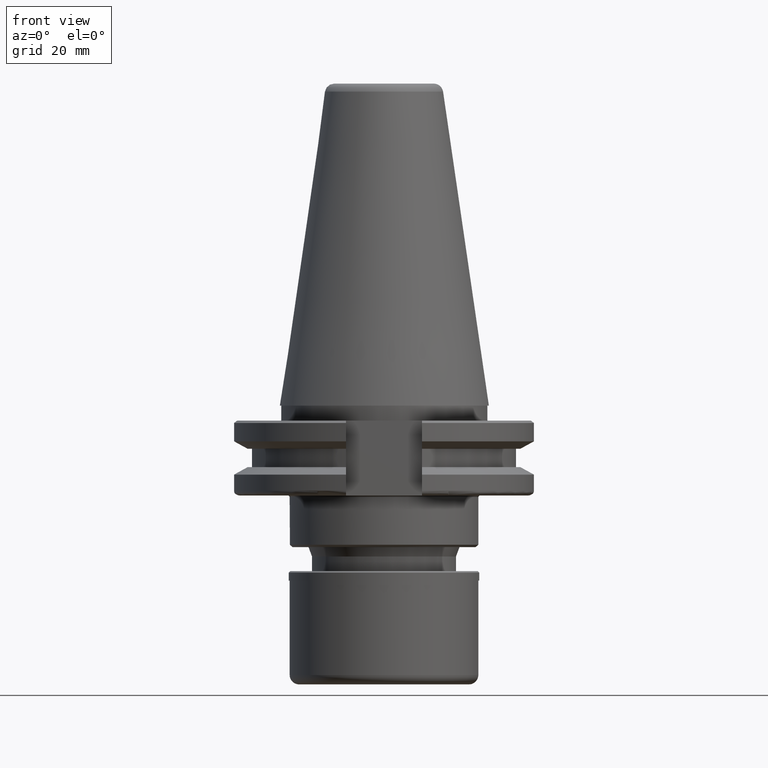
[diagram: clean part render]
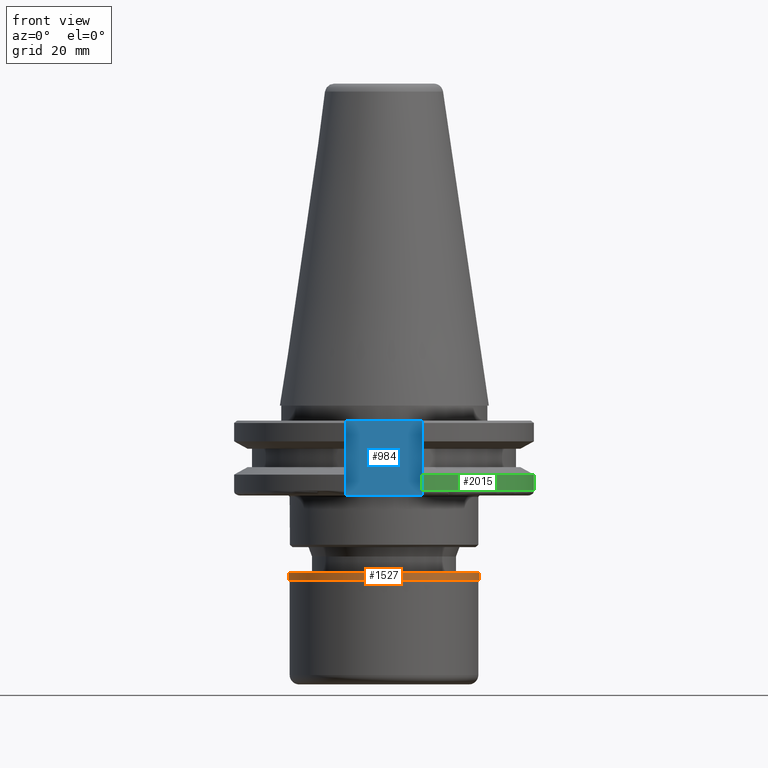
[diagram: same view with three faces highlighted in distinct colors, each labeled with its STEP entity id]
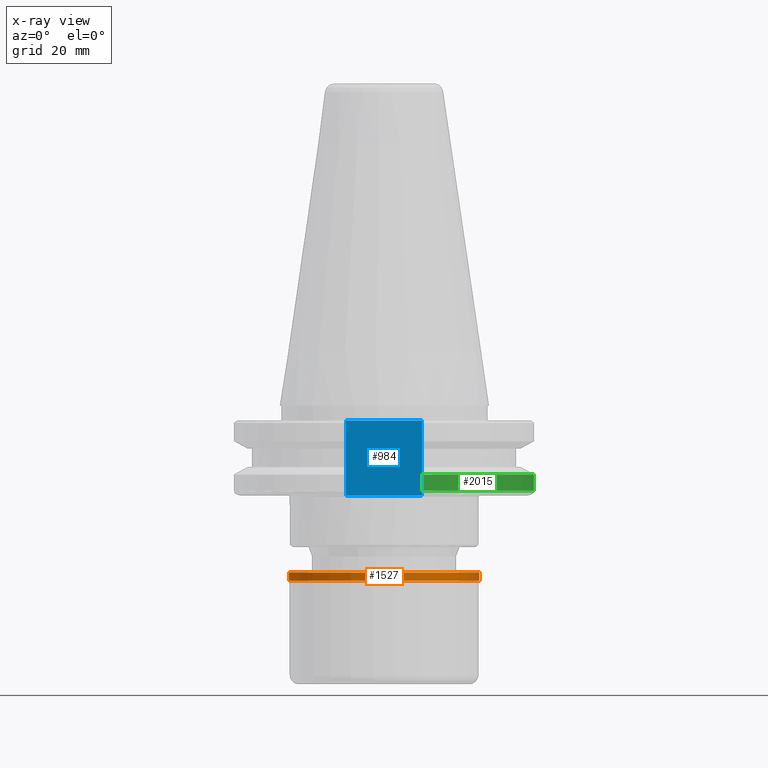
[diagram: x-ray of the same camera — body ghosted, the three highlighted faces saturated]
A machine part, front view with three faces highlighted in distinct colors.
The next image is the same camera in x-ray (body ghosted, the three faces saturated) — at least one of them is partly hidden behind the body in this view.
Their STEP definitions:

[orange] entity #1527 — the highlighted cylindrical surface (bore or boss wall) has radius 20.2 mm, axis along (-0, -0, 1).
#46 = EDGE_CURVE ( 'NONE', #1660, #1660, #1763, .T. ) ;
#247 = CARTESIAN_POINT ( 'NONE',  ( 0.0000000000000000000, 0.0000000000000000000, -37.09999999999999432 ) ) ;
#504 = AXIS2_PLACEMENT_3D ( 'NONE', #664, #1798, #1158 ) ;
#664 = CARTESIAN_POINT ( 'NONE',  ( 0.0000000000000000000, 0.0000000000000000000, -35.40000000000001279 ) ) ;
#673 = CARTESIAN_POINT ( 'NONE',  ( 0.0000000000000000000, 0.0000000000000000000, 69.24999999999997158 ) ) ;
#787 = AXIS2_PLACEMENT_3D ( 'NONE', #247, #1817, #874 ) ;
#834 = DIRECTION ( 'NONE',  ( -0.0000000000000000000, -0.0000000000000000000, 1.000000000000000000 ) ) ;
#868 = CARTESIAN_POINT ( 'NONE',  ( 20.19999999999999574, 0.0000000000000000000, -35.40000000000001279 ) ) ;
#874 = DIRECTION ( 'NONE',  ( 1.000000000000000000, 0.0000000000000000000, 0.0000000000000000000 ) ) ;
#969 = DIRECTION ( 'NONE',  ( 1.000000000000000000, 0.0000000000000000000, 0.0000000000000000000 ) ) ;
#1047 = EDGE_LOOP ( 'NONE', ( #1134 ) ) ;
#1134 = ORIENTED_EDGE ( 'NONE', *, *, #1966, .F. ) ;
#1158 = DIRECTION ( 'NONE',  ( 1.000000000000000000, 0.0000000000000000000, 0.0000000000000000000 ) ) ;
#1197 = ORIENTED_EDGE ( 'NONE', *, *, #46, .T. ) ;
#1220 = AXIS2_PLACEMENT_3D ( 'NONE', #673, #834, #969 ) ;
#1312 = EDGE_LOOP ( 'NONE', ( #1197 ) ) ;
#1327 = CARTESIAN_POINT ( 'NONE',  ( 20.19999999999999574, 0.0000000000000000000, -37.09999999999999432 ) ) ;
#1390 = FACE_OUTER_BOUND ( 'NONE', #1047, .T. ) ;
#1527 = ADVANCED_FACE ( 'NONE', ( #1390, #1635 ), #1941, .T. ) ;
#1635 = FACE_OUTER_BOUND ( 'NONE', #1312, .T. ) ;
#1660 = VERTEX_POINT ( 'NONE', #1327 ) ;
#1704 = CIRCLE ( 'NONE', #504, 20.19999999999999574 ) ;
#1720 = VERTEX_POINT ( 'NONE', #868 ) ;
#1763 = CIRCLE ( 'NONE', #787, 20.19999999999999574 ) ;
#1798 = DIRECTION ( 'NONE',  ( -0.0000000000000000000, -0.0000000000000000000, 1.000000000000000000 ) ) ;
#1817 = DIRECTION ( 'NONE',  ( -0.0000000000000000000, -0.0000000000000000000, 1.000000000000000000 ) ) ;
#1941 = CYLINDRICAL_SURFACE ( 'NONE', #1220, 20.19999999999999574 ) ;
#1966 = EDGE_CURVE ( 'NONE', #1720, #1720, #1704, .T. ) ;

[blue] entity #984 — the highlighted planar face has unit normal (-0, 1, 0).
#25 = EDGE_CURVE ( 'NONE', #193, #796, #1848, .T. ) ;
#61 = DIRECTION ( 'NONE',  ( 1.000000000000000000, 0.0000000000000000000, 0.0000000000000000000 ) ) ;
#193 = VERTEX_POINT ( 'NONE', #799 ) ;
#210 = CARTESIAN_POINT ( 'NONE',  ( -8.050000000000000711, -22.80000000000000071, -46.25028959210869317 ) ) ;
#273 = AXIS2_PLACEMENT_3D ( 'NONE', #1365, #727, #2001 ) ;
#352 = ORIENTED_EDGE ( 'NONE', *, *, #25, .T. ) ;
#357 = CARTESIAN_POINT ( 'NONE',  ( 8.050000000000000711, -22.80000000000000071, -3.180000000000016147 ) ) ;
#365 = EDGE_CURVE ( 'NONE', #895, #796, #446, .T. ) ;
#390 = CARTESIAN_POINT ( 'NONE',  ( -8.050000000000000711, -22.80000000000000071, -19.05000000000001137 ) ) ;
#446 = LINE ( 'NONE', #1888, #1085 ) ;
#482 = VECTOR ( 'NONE', #1951, 1000.000000000000000 ) ;
#535 = CARTESIAN_POINT ( 'NONE',  ( -8.050000000000000711, -22.80000000000000071, -19.05000000000001137 ) ) ;
#567 = VERTEX_POINT ( 'NONE', #390 ) ;
#587 = EDGE_CURVE ( 'NONE', #567, #895, #658, .T. ) ;
#658 = LINE ( 'NONE', #210, #482 ) ;
#727 = DIRECTION ( 'NONE',  ( -0.0000000000000000000, 1.000000000000000000, 0.0000000000000000000 ) ) ;
#796 = VERTEX_POINT ( 'NONE', #357 ) ;
#799 = CARTESIAN_POINT ( 'NONE',  ( 8.050000000000000711, -22.80000000000000071, -19.05000000000001137 ) ) ;
#860 = EDGE_CURVE ( 'NONE', #567, #193, #1918, .T. ) ;
#895 = VERTEX_POINT ( 'NONE', #1785 ) ;
#984 = ADVANCED_FACE ( 'NONE', ( #1199 ), #1219, .F. ) ;
#1062 = VECTOR ( 'NONE', #1947, 1000.000000000000000 ) ;
#1085 = VECTOR ( 'NONE', #2041, 1000.000000000000000 ) ;
#1146 = ORIENTED_EDGE ( 'NONE', *, *, #365, .F. ) ;
#1169 = ORIENTED_EDGE ( 'NONE', *, *, #860, .T. ) ;
#1172 = EDGE_LOOP ( 'NONE', ( #1954, #1169, #352, #1146 ) ) ;
#1199 = FACE_OUTER_BOUND ( 'NONE', #1172, .T. ) ;
#1219 = PLANE ( 'NONE',  #273 ) ;
#1365 = CARTESIAN_POINT ( 'NONE',  ( -8.050000000000000711, -22.80000000000000071, -46.25028959210869317 ) ) ;
#1441 = VECTOR ( 'NONE', #61, 1000.000000000000000 ) ;
#1775 = CARTESIAN_POINT ( 'NONE',  ( 8.050000000000000711, -22.80000000000000071, -46.25028959210869317 ) ) ;
#1785 = CARTESIAN_POINT ( 'NONE',  ( -8.050000000000000711, -22.80000000000000071, -3.180000000000016147 ) ) ;
#1848 = LINE ( 'NONE', #1775, #1062 ) ;
#1888 = CARTESIAN_POINT ( 'NONE',  ( 0.0000000000000000000, -22.80000000000000071, -3.180000000000016147 ) ) ;
#1918 = LINE ( 'NONE', #535, #1441 ) ;
#1947 = DIRECTION ( 'NONE',  ( -0.0000000000000000000, -0.0000000000000000000, 1.000000000000000000 ) ) ;
#1951 = DIRECTION ( 'NONE',  ( -0.0000000000000000000, -0.0000000000000000000, 1.000000000000000000 ) ) ;
#1954 = ORIENTED_EDGE ( 'NONE', *, *, #587, .F. ) ;
#2001 = DIRECTION ( 'NONE',  ( 0.0000000000000000000, -0.0000000000000000000, 1.000000000000000000 ) ) ;
#2041 = DIRECTION ( 'NONE',  ( 1.000000000000000000, 0.0000000000000000000, 0.0000000000000000000 ) ) ;

[green] entity #2015 — the highlighted cylindrical surface (partial cylindrical patch) has radius 31.775 mm, axis along (-0, -0, 1).
#20 = DIRECTION ( 'NONE',  ( -0.0000000000000000000, -0.0000000000000000000, 1.000000000000000000 ) ) ;
#54 = VERTEX_POINT ( 'NONE', #1642 ) ;
#56 = DIRECTION ( 'NONE',  ( 1.000000000000000000, 0.0000000000000000000, 0.0000000000000000000 ) ) ;
#65 = FACE_OUTER_BOUND ( 'NONE', #1081, .T. ) ;
#135 = EDGE_CURVE ( 'NONE', #54, #1503, #486, .T. ) ;
#145 = EDGE_CURVE ( 'NONE', #1173, #1503, #886, .T. ) ;
#160 = EDGE_CURVE ( 'NONE', #54, #1690, #1431, .T. ) ;
#200 = DIRECTION ( 'NONE',  ( 1.000000000000000000, 0.0000000000000000000, 0.0000000000000000000 ) ) ;
#226 = ORIENTED_EDGE ( 'NONE', *, *, #145, .T. ) ;
#270 = ORIENTED_EDGE ( 'NONE', *, *, #135, .F. ) ;
#300 = ORIENTED_EDGE ( 'NONE', *, *, #1663, .T. ) ;
#329 = CARTESIAN_POINT ( 'NONE',  ( 8.050000000000000711, 30.73843363775224802, 69.24999999999997158 ) ) ;
#369 = AXIS2_PLACEMENT_3D ( 'NONE', #986, #1018, #1492 ) ;
#386 = CIRCLE ( 'NONE', #369, 31.77504999999998603 ) ;
#398 = ORIENTED_EDGE ( 'NONE', *, *, #160, .T. ) ;
#486 = CIRCLE ( 'NONE', #1891, 31.77504999999998603 ) ;
#581 = CARTESIAN_POINT ( 'NONE',  ( 8.050000000000000711, -30.73843363775224802, 69.24999999999997158 ) ) ;
#829 = AXIS2_PLACEMENT_3D ( 'NONE', #1469, #1306, #56 ) ;
#886 = LINE ( 'NONE', #329, #1656 ) ;
#986 = CARTESIAN_POINT ( 'NONE',  ( 0.0000000000000000000, 0.0000000000000000000, -18.05000000000001137 ) ) ;
#1018 = DIRECTION ( 'NONE',  ( -0.0000000000000000000, -0.0000000000000000000, 1.000000000000000000 ) ) ;
#1081 = EDGE_LOOP ( 'NONE', ( #300, #226, #270, #398 ) ) ;
#1102 = CARTESIAN_POINT ( 'NONE',  ( 8.050000000000000711, 30.73843363775224802, -14.62183699999999753 ) ) ;
#1157 = DIRECTION ( 'NONE',  ( -0.0000000000000000000, -0.0000000000000000000, 1.000000000000000000 ) ) ;
#1173 = VERTEX_POINT ( 'NONE', #1535 ) ;
#1306 = DIRECTION ( 'NONE',  ( -0.0000000000000000000, -0.0000000000000000000, 1.000000000000000000 ) ) ;
#1324 = CARTESIAN_POINT ( 'NONE',  ( 8.050000000000000711, -30.73843363775224802, -18.05000000000001137 ) ) ;
#1431 = LINE ( 'NONE', #581, #2037 ) ;
#1453 = CARTESIAN_POINT ( 'NONE',  ( 0.0000000000000000000, 0.0000000000000000000, -14.62183699999999931 ) ) ;
#1462 = CYLINDRICAL_SURFACE ( 'NONE', #829, 31.77504999999998603 ) ;
#1469 = CARTESIAN_POINT ( 'NONE',  ( 0.0000000000000000000, 0.0000000000000000000, 69.24999999999997158 ) ) ;
#1492 = DIRECTION ( 'NONE',  ( 1.000000000000000000, 0.0000000000000000000, 0.0000000000000000000 ) ) ;
#1503 = VERTEX_POINT ( 'NONE', #1102 ) ;
#1535 = CARTESIAN_POINT ( 'NONE',  ( 8.050000000000000711, 30.73843363775224802, -18.05000000000001137 ) ) ;
#1642 = CARTESIAN_POINT ( 'NONE',  ( 8.050000000000000711, -30.73843363775224802, -14.62183699999999931 ) ) ;
#1656 = VECTOR ( 'NONE', #20, 1000.000000000000000 ) ;
#1663 = EDGE_CURVE ( 'NONE', #1690, #1173, #386, .T. ) ;
#1679 = DIRECTION ( 'NONE',  ( 0.0000000000000000000, 0.0000000000000000000, -1.000000000000000000 ) ) ;
#1690 = VERTEX_POINT ( 'NONE', #1324 ) ;
#1891 = AXIS2_PLACEMENT_3D ( 'NONE', #1453, #1157, #200 ) ;
#2015 = ADVANCED_FACE ( 'NONE', ( #65 ), #1462, .T. ) ;
#2037 = VECTOR ( 'NONE', #1679, 1000.000000000000000 ) ;